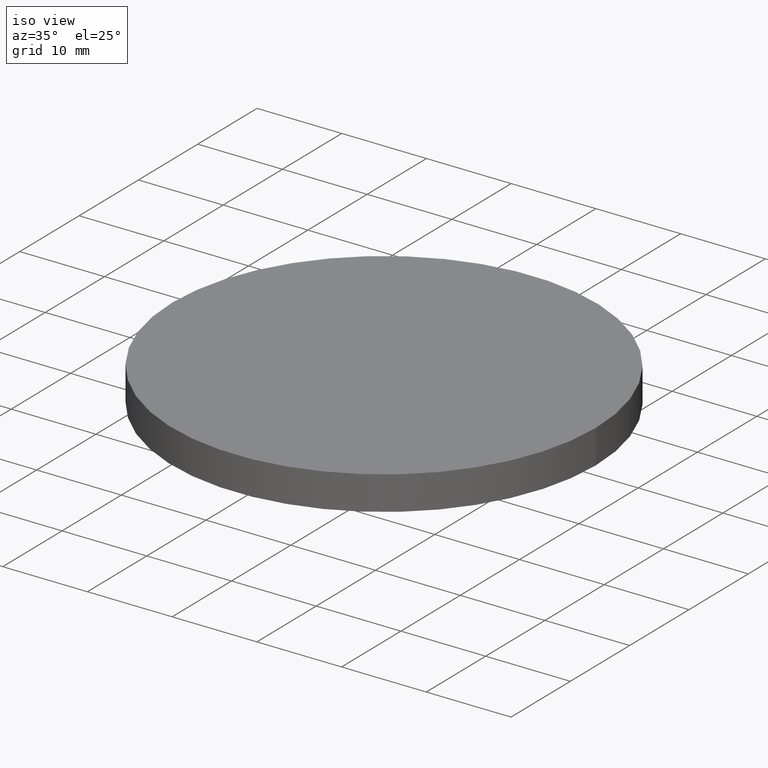
[diagram: clean part render]
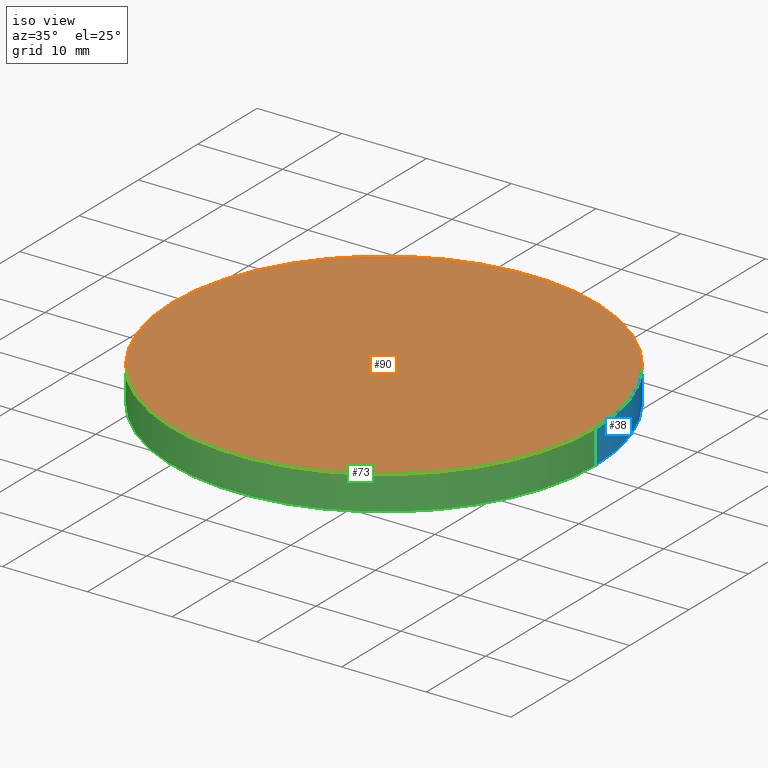
[diagram: same view with three faces highlighted in distinct colors, each labeled with its STEP entity id]
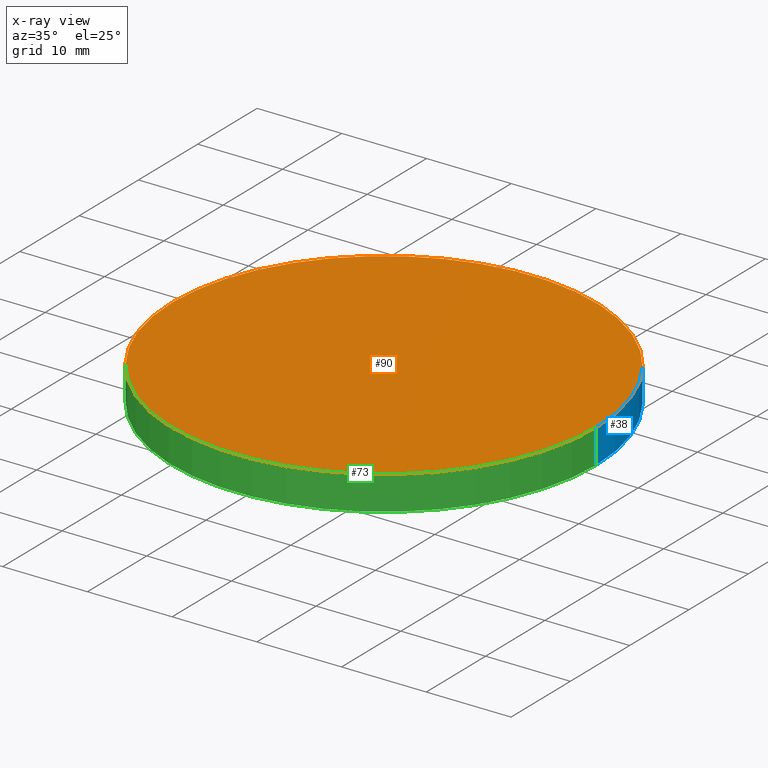
[diagram: x-ray of the same camera — body ghosted, the three highlighted faces saturated]
A machine part, iso view with three faces highlighted in distinct colors.
The next image is the same camera in x-ray (body ghosted, the three faces saturated) — at least one of them is partly hidden behind the body in this view.
Their STEP definitions:

[orange] entity #90 — the highlighted planar face has unit normal (0, 0, 1).
#4 = AXIS2_PLACEMENT_3D ( 'NONE', #46, #35, #56 ) ;
#6 = DIRECTION ( 'NONE',  ( 0.0000000000000000000, 0.0000000000000000000, 1.000000000000000000 ) ) ;
#7 = EDGE_CURVE ( 'NONE', #89, #83, #14, .T. ) ;
#8 = CARTESIAN_POINT ( 'NONE',  ( 0.0000000000000000000, 0.0000000000000000000, 4.000000000000000000 ) ) ;
#14 = CIRCLE ( 'NONE', #51, 25.00000000000000000 ) ;
#16 = DIRECTION ( 'NONE',  ( 1.000000000000000000, 0.0000000000000000000, 0.0000000000000000000 ) ) ;
#19 = FACE_OUTER_BOUND ( 'NONE', #133, .T. ) ;
#26 = CIRCLE ( 'NONE', #72, 25.00000000000000000 ) ;
#35 = DIRECTION ( 'NONE',  ( 0.0000000000000000000, 0.0000000000000000000, 1.000000000000000000 ) ) ;
#36 = CARTESIAN_POINT ( 'NONE',  ( -25.00000000000000000, 0.0000000000000000000, 4.000000000000000000 ) ) ;
#41 = ORIENTED_EDGE ( 'NONE', *, *, #7, .T. ) ;
#46 = CARTESIAN_POINT ( 'NONE',  ( 0.0000000000000000000, 0.0000000000000000000, 4.000000000000000000 ) ) ;
#51 = AXIS2_PLACEMENT_3D ( 'NONE', #8, #6, #66 ) ;
#56 = DIRECTION ( 'NONE',  ( 1.000000000000000000, 0.0000000000000000000, -0.0000000000000000000 ) ) ;
#64 = CARTESIAN_POINT ( 'NONE',  ( 0.0000000000000000000, 0.0000000000000000000, 4.000000000000000000 ) ) ;
#66 = DIRECTION ( 'NONE',  ( 1.000000000000000000, 0.0000000000000000000, 0.0000000000000000000 ) ) ;
#72 = AXIS2_PLACEMENT_3D ( 'NONE', #64, #75, #16 ) ;
#75 = DIRECTION ( 'NONE',  ( 0.0000000000000000000, 0.0000000000000000000, 1.000000000000000000 ) ) ;
#83 = VERTEX_POINT ( 'NONE', #113 ) ;
#89 = VERTEX_POINT ( 'NONE', #36 ) ;
#90 = ADVANCED_FACE ( 'NONE', ( #19 ), #115, .T. ) ;
#99 = EDGE_CURVE ( 'NONE', #83, #89, #26, .T. ) ;
#113 = CARTESIAN_POINT ( 'NONE',  ( 25.00000000000000000, 3.061616997868383000E-015, 4.000000000000000000 ) ) ;
#115 = PLANE ( 'NONE',  #4 ) ;
#127 = ORIENTED_EDGE ( 'NONE', *, *, #99, .T. ) ;
#133 = EDGE_LOOP ( 'NONE', ( #41, #127 ) ) ;

[blue] entity #38 — the highlighted cylindrical surface (partial cylindrical patch) has radius 25 mm, axis along (-0, -0, -1).
#1 = VECTOR ( 'NONE', #116, 1000.000000000000000 ) ;
#2 = CARTESIAN_POINT ( 'NONE',  ( 25.00000000000000000, 3.061616997868383000E-015, 0.0000000000000000000 ) ) ;
#3 = LINE ( 'NONE', #118, #1 ) ;
#11 = CYLINDRICAL_SURFACE ( 'NONE', #40, 25.00000000000000000 ) ;
#12 = FACE_OUTER_BOUND ( 'NONE', #93, .T. ) ;
#16 = DIRECTION ( 'NONE',  ( 1.000000000000000000, 0.0000000000000000000, 0.0000000000000000000 ) ) ;
#21 = LINE ( 'NONE', #65, #94 ) ;
#26 = CIRCLE ( 'NONE', #72, 25.00000000000000000 ) ;
#28 = ORIENTED_EDGE ( 'NONE', *, *, #117, .T. ) ;
#31 = EDGE_CURVE ( 'NONE', #83, #139, #3, .T. ) ;
#32 = DIRECTION ( 'NONE',  ( 0.0000000000000000000, 0.0000000000000000000, 1.000000000000000000 ) ) ;
#36 = CARTESIAN_POINT ( 'NONE',  ( -25.00000000000000000, 0.0000000000000000000, 4.000000000000000000 ) ) ;
#38 = ADVANCED_FACE ( 'NONE', ( #12 ), #11, .T. ) ;
#40 = AXIS2_PLACEMENT_3D ( 'NONE', #121, #106, #104 ) ;
#44 = CARTESIAN_POINT ( 'NONE',  ( 0.0000000000000000000, 0.0000000000000000000, 0.0000000000000000000 ) ) ;
#47 = CARTESIAN_POINT ( 'NONE',  ( -25.00000000000000000, 0.0000000000000000000, 0.0000000000000000000 ) ) ;
#50 = ORIENTED_EDGE ( 'NONE', *, *, #31, .T. ) ;
#64 = CARTESIAN_POINT ( 'NONE',  ( 0.0000000000000000000, 0.0000000000000000000, 4.000000000000000000 ) ) ;
#65 = CARTESIAN_POINT ( 'NONE',  ( -25.00000000000000000, 0.0000000000000000000, 4.000000000000000000 ) ) ;
#72 = AXIS2_PLACEMENT_3D ( 'NONE', #64, #75, #16 ) ;
#74 = VERTEX_POINT ( 'NONE', #47 ) ;
#75 = DIRECTION ( 'NONE',  ( 0.0000000000000000000, 0.0000000000000000000, 1.000000000000000000 ) ) ;
#83 = VERTEX_POINT ( 'NONE', #113 ) ;
#86 = ORIENTED_EDGE ( 'NONE', *, *, #108, .F. ) ;
#88 = CIRCLE ( 'NONE', #123, 25.00000000000000000 ) ;
#89 = VERTEX_POINT ( 'NONE', #36 ) ;
#93 = EDGE_LOOP ( 'NONE', ( #124, #50, #28, #86 ) ) ;
#94 = VECTOR ( 'NONE', #114, 1000.000000000000000 ) ;
#99 = EDGE_CURVE ( 'NONE', #83, #89, #26, .T. ) ;
#104 = DIRECTION ( 'NONE',  ( -1.000000000000000000, 0.0000000000000000000, 0.0000000000000000000 ) ) ;
#106 = DIRECTION ( 'NONE',  ( -0.0000000000000000000, -0.0000000000000000000, -1.000000000000000000 ) ) ;
#108 = EDGE_CURVE ( 'NONE', #89, #74, #21, .T. ) ;
#112 = DIRECTION ( 'NONE',  ( 1.000000000000000000, 0.0000000000000000000, 0.0000000000000000000 ) ) ;
#113 = CARTESIAN_POINT ( 'NONE',  ( 25.00000000000000000, 3.061616997868383000E-015, 4.000000000000000000 ) ) ;
#114 = DIRECTION ( 'NONE',  ( -0.0000000000000000000, -0.0000000000000000000, -1.000000000000000000 ) ) ;
#116 = DIRECTION ( 'NONE',  ( -0.0000000000000000000, -0.0000000000000000000, -1.000000000000000000 ) ) ;
#117 = EDGE_CURVE ( 'NONE', #139, #74, #88, .T. ) ;
#118 = CARTESIAN_POINT ( 'NONE',  ( 25.00000000000000000, 3.061616997868383000E-015, 4.000000000000000000 ) ) ;
#121 = CARTESIAN_POINT ( 'NONE',  ( 0.0000000000000000000, 0.0000000000000000000, 4.000000000000000000 ) ) ;
#123 = AXIS2_PLACEMENT_3D ( 'NONE', #44, #32, #112 ) ;
#124 = ORIENTED_EDGE ( 'NONE', *, *, #99, .F. ) ;
#139 = VERTEX_POINT ( 'NONE', #2 ) ;

[green] entity #73 — the highlighted cylindrical surface (partial cylindrical patch) has radius 25 mm, axis along (-0, -0, -1).
#1 = VECTOR ( 'NONE', #116, 1000.000000000000000 ) ;
#2 = CARTESIAN_POINT ( 'NONE',  ( 25.00000000000000000, 3.061616997868383000E-015, 0.0000000000000000000 ) ) ;
#3 = LINE ( 'NONE', #118, #1 ) ;
#6 = DIRECTION ( 'NONE',  ( 0.0000000000000000000, 0.0000000000000000000, 1.000000000000000000 ) ) ;
#7 = EDGE_CURVE ( 'NONE', #89, #83, #14, .T. ) ;
#8 = CARTESIAN_POINT ( 'NONE',  ( 0.0000000000000000000, 0.0000000000000000000, 4.000000000000000000 ) ) ;
#14 = CIRCLE ( 'NONE', #51, 25.00000000000000000 ) ;
#15 = FACE_OUTER_BOUND ( 'NONE', #69, .T. ) ;
#21 = LINE ( 'NONE', #65, #94 ) ;
#23 = CARTESIAN_POINT ( 'NONE',  ( 0.0000000000000000000, 0.0000000000000000000, 4.000000000000000000 ) ) ;
#24 = ORIENTED_EDGE ( 'NONE', *, *, #108, .T. ) ;
#25 = AXIS2_PLACEMENT_3D ( 'NONE', #23, #85, #95 ) ;
#31 = EDGE_CURVE ( 'NONE', #83, #139, #3, .T. ) ;
#36 = CARTESIAN_POINT ( 'NONE',  ( -25.00000000000000000, 0.0000000000000000000, 4.000000000000000000 ) ) ;
#47 = CARTESIAN_POINT ( 'NONE',  ( -25.00000000000000000, 0.0000000000000000000, 0.0000000000000000000 ) ) ;
#48 = EDGE_CURVE ( 'NONE', #74, #139, #111, .T. ) ;
#51 = AXIS2_PLACEMENT_3D ( 'NONE', #8, #6, #66 ) ;
#52 = ORIENTED_EDGE ( 'NONE', *, *, #7, .F. ) ;
#65 = CARTESIAN_POINT ( 'NONE',  ( -25.00000000000000000, 0.0000000000000000000, 4.000000000000000000 ) ) ;
#66 = DIRECTION ( 'NONE',  ( 1.000000000000000000, 0.0000000000000000000, 0.0000000000000000000 ) ) ;
#69 = EDGE_LOOP ( 'NONE', ( #81, #52, #24, #76 ) ) ;
#73 = ADVANCED_FACE ( 'NONE', ( #15 ), #128, .T. ) ;
#74 = VERTEX_POINT ( 'NONE', #47 ) ;
#76 = ORIENTED_EDGE ( 'NONE', *, *, #48, .T. ) ;
#80 = AXIS2_PLACEMENT_3D ( 'NONE', #102, #131, #103 ) ;
#81 = ORIENTED_EDGE ( 'NONE', *, *, #31, .F. ) ;
#83 = VERTEX_POINT ( 'NONE', #113 ) ;
#85 = DIRECTION ( 'NONE',  ( -0.0000000000000000000, -0.0000000000000000000, -1.000000000000000000 ) ) ;
#89 = VERTEX_POINT ( 'NONE', #36 ) ;
#94 = VECTOR ( 'NONE', #114, 1000.000000000000000 ) ;
#95 = DIRECTION ( 'NONE',  ( -1.000000000000000000, 0.0000000000000000000, 0.0000000000000000000 ) ) ;
#102 = CARTESIAN_POINT ( 'NONE',  ( 0.0000000000000000000, 0.0000000000000000000, 0.0000000000000000000 ) ) ;
#103 = DIRECTION ( 'NONE',  ( 1.000000000000000000, 0.0000000000000000000, 0.0000000000000000000 ) ) ;
#108 = EDGE_CURVE ( 'NONE', #89, #74, #21, .T. ) ;
#111 = CIRCLE ( 'NONE', #80, 25.00000000000000000 ) ;
#113 = CARTESIAN_POINT ( 'NONE',  ( 25.00000000000000000, 3.061616997868383000E-015, 4.000000000000000000 ) ) ;
#114 = DIRECTION ( 'NONE',  ( -0.0000000000000000000, -0.0000000000000000000, -1.000000000000000000 ) ) ;
#116 = DIRECTION ( 'NONE',  ( -0.0000000000000000000, -0.0000000000000000000, -1.000000000000000000 ) ) ;
#118 = CARTESIAN_POINT ( 'NONE',  ( 25.00000000000000000, 3.061616997868383000E-015, 4.000000000000000000 ) ) ;
#128 = CYLINDRICAL_SURFACE ( 'NONE', #25, 25.00000000000000000 ) ;
#131 = DIRECTION ( 'NONE',  ( 0.0000000000000000000, 0.0000000000000000000, 1.000000000000000000 ) ) ;
#139 = VERTEX_POINT ( 'NONE', #2 ) ;